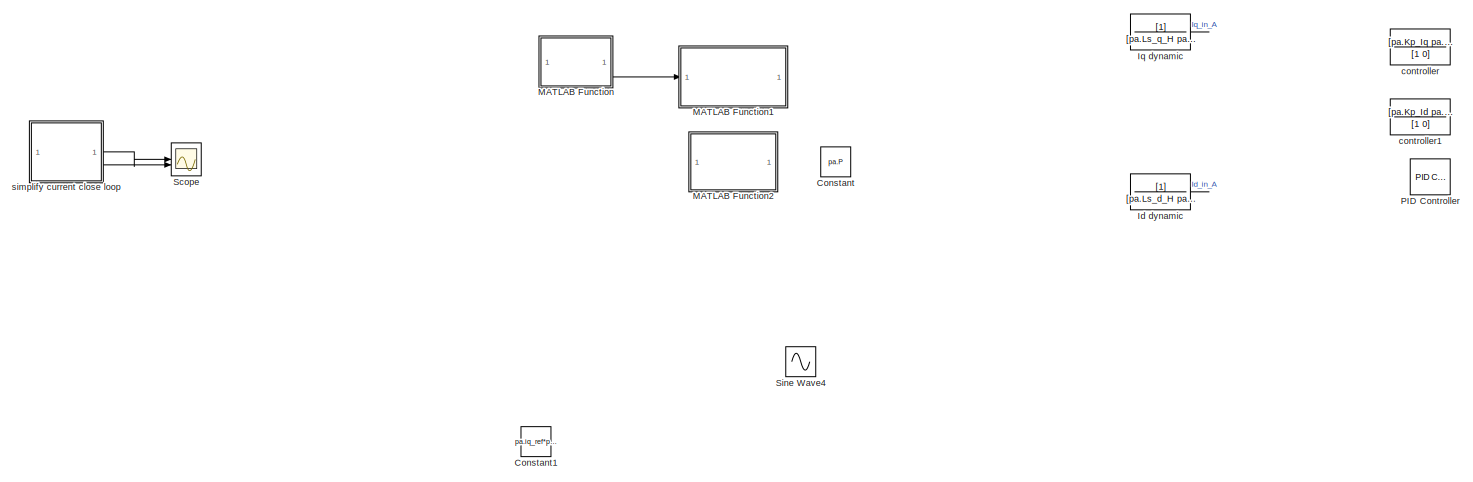
[diagram: root canvas - part 1/9, top right region]
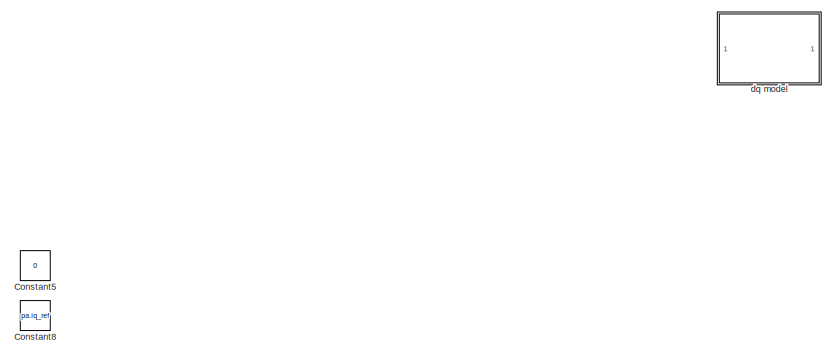
[diagram: root canvas - part 2/9, middle right region]
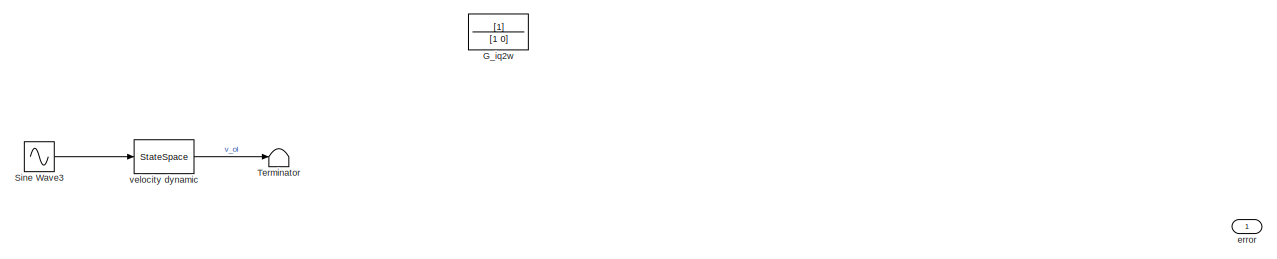
[diagram: root canvas - part 3/9, central region]
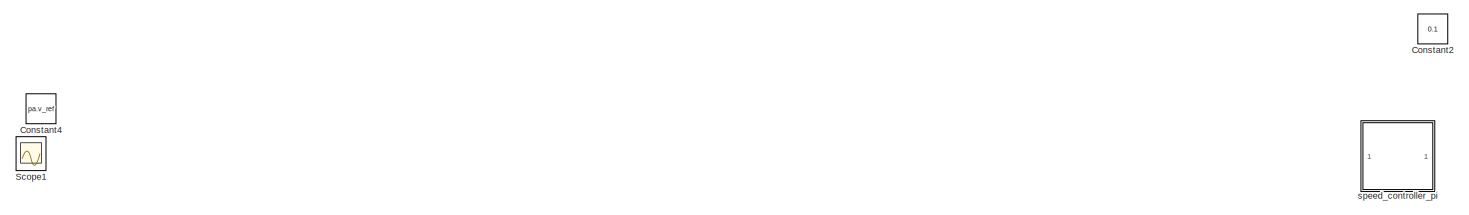
[diagram: root canvas - part 4/9, middle left region]
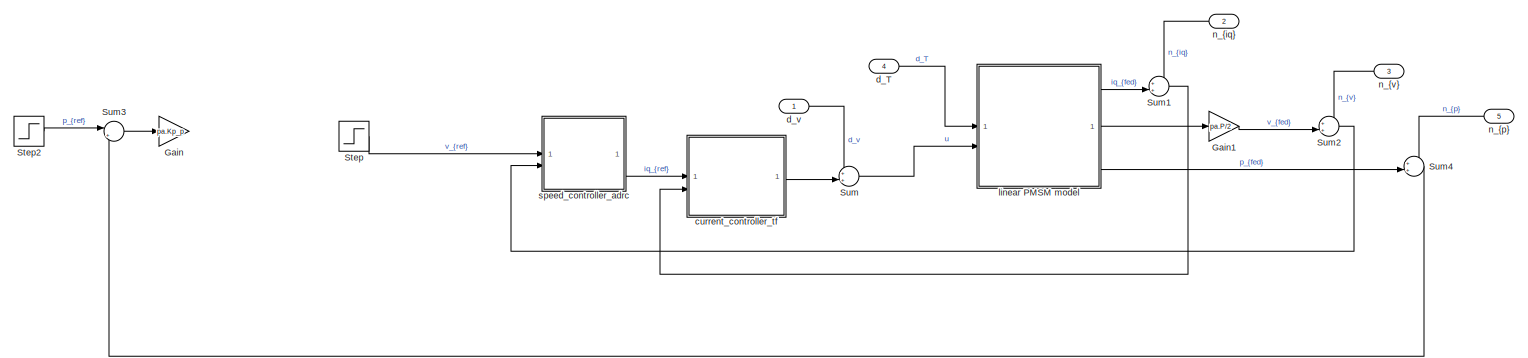
[diagram: root canvas - part 5/9, central region]
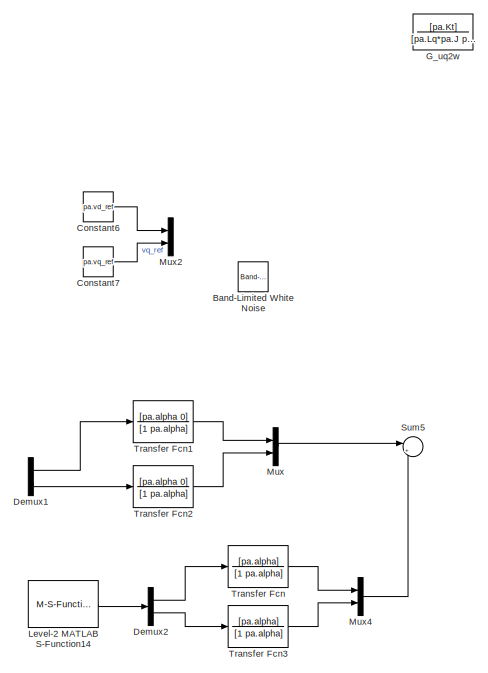
[diagram: root canvas - part 6/9, central region]
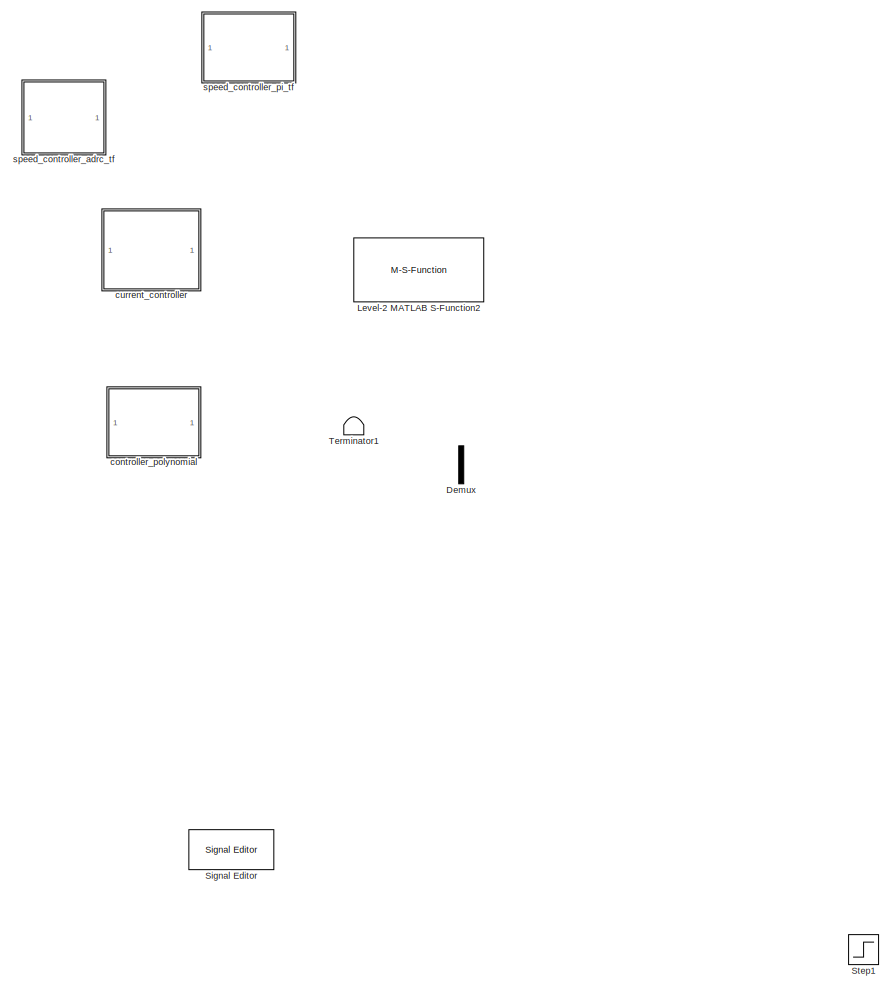
[diagram: root canvas - part 7/9, middle left region]
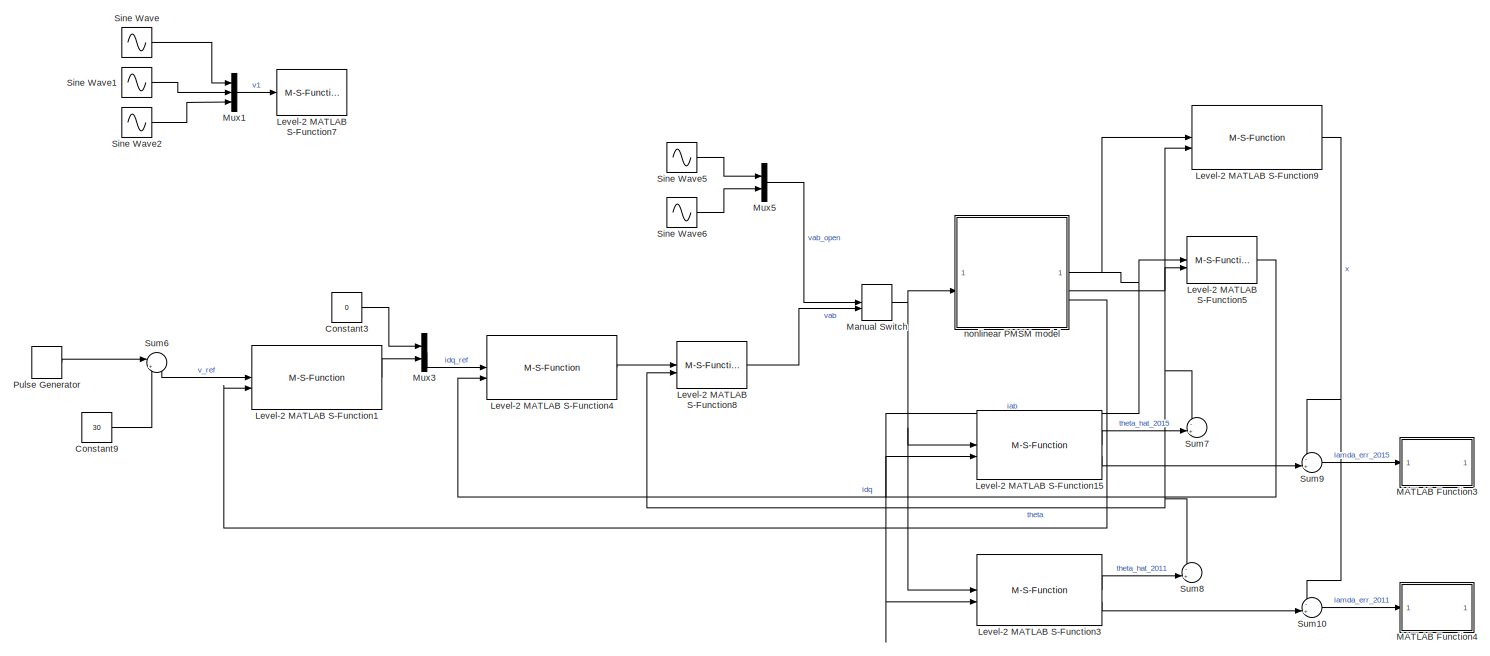
[diagram: root canvas - part 8/9, bottom center region]
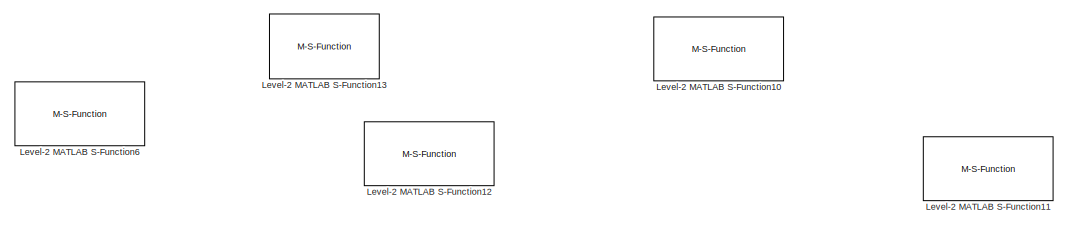
[diagram: root canvas - part 9/9, bottom center region]
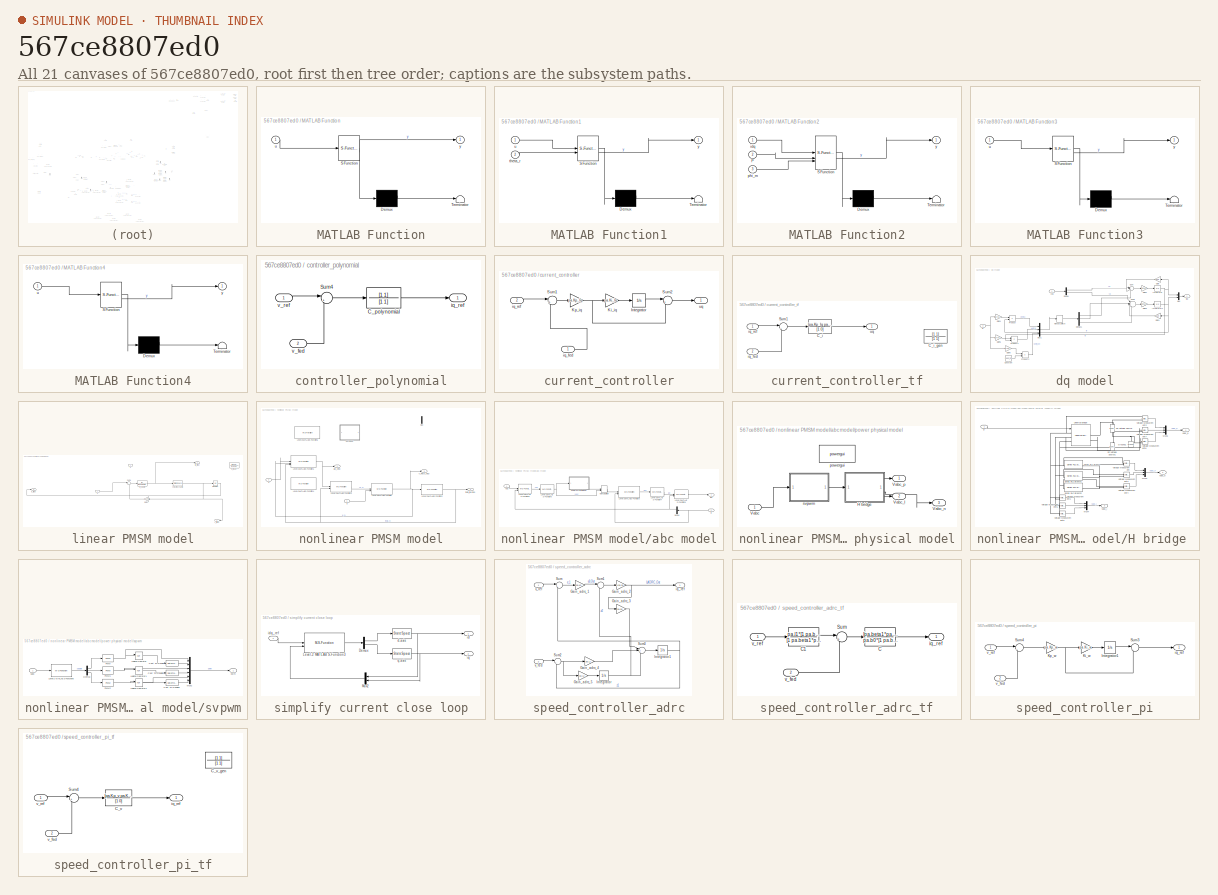
[diagram: thumbnail index - all 21 canvases of the model, root first then tree order]
MODEL slx_567ce8807ed0
KIND model
CONFIG AbsTol = auto
CONFIG EnableMultiTasking = off
CONFIG FixedStep = 0.02
CONFIG InitFcn = init
CONFIG MaxStep = 0.02
CONFIG MinStep = auto
CONFIG RelTol = 1e-3
CONFIG SampleTimeConstraint = Unconstrained
CONFIG SolverName = VariableStepAuto
CONFIG StartTime = 0.0
CONFIG StopTime = 1
BLOCK [Reference] Band-Limited White Noise  REF=simulink/Sources/Band-Limited
White Noise
  Commented = on
  SourceBlock = simulink/Sources/Band-Limited\nWhite Noise
  SourceType = Band-Limited White Noise.
BLOCK [Constant] Constant
  Commented = on
  Value = pa.P
BLOCK [Constant] Constant1
  Commented = on
  Value = pa.iq_ref*pa.R
BLOCK [Constant] Constant2
  Commented = on
  Value = 0.1
BLOCK [Constant] Constant3
  Value = 0
BLOCK [Constant] Constant4
  Commented = on
  Value = pa.v_ref
BLOCK [Constant] Constant5
  Commented = on
  Value = 0
BLOCK [Constant] Constant6
  Value = pa.vd_ref
BLOCK [Constant] Constant7
  Value = pa.vq_ref
BLOCK [Constant] Constant8
  Commented = on
  Value = pa.iq_ref
BLOCK [Constant] Constant9
  Value = 30
BLOCK [Demux] Demux
  Commented = on
  Outputs = 2
BLOCK [Demux] Demux1
  Commented = on
  Outputs = 2
BLOCK [Demux] Demux2
  Commented = on
  Outputs = 2
BLOCK [TransferFcn] G_iq2w
  Commented = on
  Denominator = [1 0]
BLOCK [TransferFcn] G_uq2w
  Commented = on
  Denominator = [pa.Lq*pa.J pa.B*pa.Lq+pa.J*pa.R pa.B*pa.R+pa.Kt*pa.P/2*pa.phi_m]
  Numerator = [pa.Kt]
BLOCK [Gain] Gain
  Commented = on
  Gain = pa.Kp_p
BLOCK [Gain] Gain1
  Commented = on
  Gain = pa.P/2
BLOCK [TransferFcn] Id dynamic
  Commented = on
  Denominator = [pa.Ls_d_H pa.Rs_Ohm]
BLOCK [TransferFcn] Iq dynamic
  Commented = on
  Denominator = [pa.Ls_q_H pa.Rs_Ohm]
BLOCK [M-S-Function] Level-2 MATLAB S-Function1
  FunctionName = speed_controller_pi
  Parameters = pa
BLOCK [M-S-Function] Level-2 MATLAB S-Function10
  Commented = on
  FunctionName = position_reconstruct
  Parameters = pa
BLOCK [M-S-Function] Level-2 MATLAB S-Function11
  Commented = on
  FunctionName = Animation
  Parameters = pa
BLOCK [M-S-Function] Level-2 MATLAB S-Function12
  Commented = on
  FunctionName = flux_dynamic
  Parameters = pa
BLOCK [M-S-Function] Level-2 MATLAB S-Function13
  Commented = on
  FunctionName = nonlinear_observer_Bobtsov2015_ijacsp
  Parameters = pa
BLOCK [M-S-Function] Level-2 MATLAB S-Function14
  Commented = on
  FunctionName = y_temp
  Parameters = pa
BLOCK [M-S-Function] Level-2 MATLAB S-Function15
  FunctionName = nonlinear_observer_Bobtsov2015_auto
  Parameters = pa
BLOCK [M-S-Function] Level-2 MATLAB S-Function2
  Commented = on
  FunctionName = voltage_controller
  Parameters = pa
BLOCK [M-S-Function] Level-2 MATLAB S-Function3
  FunctionName = nonlinear_observer_ortega2011
  Parameters = pa
BLOCK [M-S-Function] Level-2 MATLAB S-Function4
  FunctionName = current_controller
  Parameters = pa
BLOCK [M-S-Function] Level-2 MATLAB S-Function5
  FunctionName = park
  Parameters = pa
BLOCK [M-S-Function] Level-2 MATLAB S-Function6
  Commented = on
  FunctionName = position_reconstruct
  Parameters = pa
BLOCK [M-S-Function] Level-2 MATLAB S-Function7
  FunctionName = clark
  Parameters = pa
BLOCK [M-S-Function] Level-2 MATLAB S-Function8
  FunctionName = park_inv
  Parameters = pa
BLOCK [M-S-Function] Level-2 MATLAB S-Function9
  FunctionName = motor_flux_model
  Parameters = pa
BLOCK [SubSystem] MATLAB Function
  Commented = on
  ErrorFcn = Stateflow.Translate.translate
  PermitHierarchicalResolution = ExplicitOnly
  SFBlockType = MATLAB Function
  TreatAsAtomicUnit = on
BLOCK [Demux] MATLAB Function/ Demux 
  Outputs = 1
BLOCK [S-Function] MATLAB Function/ SFunction 
  EnableBusSupport = on
  FunctionName = sf_sfun
  PortCounts = [1 2]
  SFcnIsStateOwnerBlock = off
  SFunctionDeploymentMode = off
  Tag = Stateflow S-Function 2
BLOCK [Terminator] MATLAB Function/ Terminator 
BLOCK [Inport] MATLAB Function/u
BLOCK [Outport] MATLAB Function/y
BLOCK [SubSystem] MATLAB Function1
  Commented = on
  ErrorFcn = Stateflow.Translate.translate
  PermitHierarchicalResolution = ExplicitOnly
  SFBlockType = MATLAB Function
  TreatAsAtomicUnit = on
BLOCK [Demux] MATLAB Function1/ Demux 
  Outputs = 1
BLOCK [S-Function] MATLAB Function1/ SFunction 
  EnableBusSupport = on
  FunctionName = sf_sfun
  PortCounts = [2 2]
  SFcnIsStateOwnerBlock = off
  SFunctionDeploymentMode = off
  Tag = Stateflow S-Function 1
BLOCK [Terminator] MATLAB Function1/ Terminator 
BLOCK [Inport] MATLAB Function1/theta_r
  Port = 2
BLOCK [Inport] MATLAB Function1/u
BLOCK [Outport] MATLAB Function1/y
BLOCK [SubSystem] MATLAB Function2
  Commented = on
  ErrorFcn = Stateflow.Translate.translate
  PermitHierarchicalResolution = ExplicitOnly
  SFBlockType = MATLAB Function
  TreatAsAtomicUnit = on
BLOCK [Demux] MATLAB Function2/ Demux 
  Outputs = 1
BLOCK [S-Function] MATLAB Function2/ SFunction 
  EnableBusSupport = on
  FunctionName = sf_sfun
  PortCounts = [3 2]
  SFcnIsStateOwnerBlock = off
  SFunctionDeploymentMode = off
  Tag = Stateflow S-Function 3
BLOCK [Terminator] MATLAB Function2/ Terminator 
BLOCK [Inport] MATLAB Function2/P
  Port = 2
BLOCK [Inport] MATLAB Function2/idq
BLOCK [Inport] MATLAB Function2/phi_m
  Port = 3
BLOCK [Outport] MATLAB Function2/y
BLOCK [SubSystem] MATLAB Function3
  ErrorFcn = Stateflow.Translate.translate
  PermitHierarchicalResolution = ExplicitOnly
  SFBlockType = MATLAB Function
  TreatAsAtomicUnit = on
BLOCK [Demux] MATLAB Function3/ Demux 
  Outputs = 1
BLOCK [S-Function] MATLAB Function3/ SFunction 
  EnableBusSupport = on
  FunctionName = sf_sfun
  PortCounts = [1 2]
  SFcnIsStateOwnerBlock = off
  SFunctionDeploymentMode = off
  Tag = Stateflow S-Function 4
BLOCK [Terminator] MATLAB Function3/ Terminator 
BLOCK [Inport] MATLAB Function3/u
BLOCK [Outport] MATLAB Function3/y
BLOCK [SubSystem] MATLAB Function4
  ErrorFcn = Stateflow.Translate.translate
  PermitHierarchicalResolution = ExplicitOnly
  SFBlockType = MATLAB Function
  TreatAsAtomicUnit = on
BLOCK [Demux] MATLAB Function4/ Demux 
  Outputs = 1
BLOCK [S-Function] MATLAB Function4/ SFunction 
  EnableBusSupport = on
  FunctionName = sf_sfun
  PortCounts = [1 2]
  SFcnIsStateOwnerBlock = off
  SFunctionDeploymentMode = off
  Tag = Stateflow S-Function 5
BLOCK [Terminator] MATLAB Function4/ Terminator 
BLOCK [Inport] MATLAB Function4/u
BLOCK [Outport] MATLAB Function4/y
BLOCK [ManualSwitch] Manual Switch
BLOCK [Mux] Mux
  Commented = on
  DisplayOption = bar
  Inputs = 2
BLOCK [Mux] Mux1
  DisplayOption = bar
  Inputs = 3
BLOCK [Mux] Mux2
  DisplayOption = bar
  Inputs = 2
BLOCK [Mux] Mux3
  DisplayOption = bar
  Inputs = 2
BLOCK [Mux] Mux4
  Commented = on
  DisplayOption = bar
  Inputs = 2
BLOCK [Mux] Mux5
  DisplayOption = bar
  Inputs = 2
BLOCK [Reference] PID Controller  REF=slpidlib/PID Controller
  Commented = on
  LibrarySourceBlock = simulink/Continuous/PID Controller
  SourceBlock = slpidlib/PID Controller
  SourceType = PID 1dof
BLOCK [DiscretePulseGenerator] Pulse Generator
  Amplitude = 60
  Period = 0.01
  PulseType = Time based
  PulseWidth = 50
BLOCK [Scope] Scope
  Commented = on
  Floating = off
  NumInputPorts = 2
  ScopeSpecificationString = Simulink.scopes.TimeScopeBlockCfg('CurrentConfiguration', extmgr.ConfigurationSet(extmgr.Configuration('Core','General UI',true),extmgr.Configuration('Core','Source UI',true),extmgr.Configuration('Sources','WiredSimulink',true),extmgr.Configuration('Visuals','Time Domain',true,'SerializedDisplays',{struct('MinYLimReal','-0.125','MaxYLimReal','1.12502','YLabelReal','','MinYLimMag','0.00000','MaxYLi...<+1523ch>
BLOCK [Scope] Scope1
  Commented = on
  Floating = off
  NumInputPorts = 1
  ScopeSpecificationString = Simulink.scopes.TimeScopeBlockCfg('CurrentConfiguration', extmgr.ConfigurationSet(extmgr.Configuration('Core','General UI',true),extmgr.Configuration('Core','Source UI',true),extmgr.Configuration('Sources','WiredSimulink',true,'DataLoggingVariableName','ScopeData1'),extmgr.Configuration('Visuals','Time Domain',true,'SerializedDisplays',{struct('MinYLimReal','-1.00000','MaxYLimReal','1.00000','YLab...<+1438ch>
BLOCK [Reference] Signal Editor  REF=SignalEditorBlockLib/Signal Editor
  Commented = on
  LibrarySourceBlock = simulink/Sources/Signal Editor
  SourceBlock = SignalEditorBlockLib/Signal Editor
  SourceType = SignalEditor
  UserDataPersistent = on
BLOCK [Sin] Sine Wave
  Frequency = 50*2*pi
  SampleTime = 0
BLOCK [Sin] Sine Wave1
  Frequency = 50*2*pi
  Phase = -2*pi/3
  SampleTime = 0
BLOCK [Sin] Sine Wave2
  Frequency = 50*2*pi
  Phase = 2*pi/3
  SampleTime = 0
BLOCK [Sin] Sine Wave3
  Amplitude = 1.0
  Commented = on
  Frequency = 1*2*pi
  SampleTime = 0
BLOCK [Sin] Sine Wave4
  Commented = on
  Frequency = 50*2*pi
  Phase = -pi/2
  SampleTime = 0
BLOCK [Sin] Sine Wave5
  Amplitude = 100
  Frequency = 50
  SampleTime = 0
BLOCK [Sin] Sine Wave6
  Amplitude = 100
  Frequency = 50
  Phase = pi/2
  SampleTime = 0
BLOCK [Step] Step
  After = pa.v_ref
  Commented = on
  SampleTime = 0
BLOCK [Step] Step1
  After = pa.v_ref
  SampleTime = 0
  Time = 0.1
BLOCK [Step] Step2
  After = pa.p_vef
  Commented = on
  SampleTime = 0
BLOCK [Sum] Sum
  Commented = on
  Inputs = ++|
BLOCK [Sum] Sum1
  Commented = on
  Inputs = ++|
BLOCK [Sum] Sum10
  Inputs = -+|
BLOCK [Sum] Sum2
  Commented = on
  Inputs = ++|
BLOCK [Sum] Sum3
  Commented = on
  Inputs = |+-
BLOCK [Sum] Sum4
  Commented = on
  Inputs = ++|
BLOCK [Sum] Sum5
  Commented = on
  Inputs = |+-
BLOCK [Sum] Sum6
  Inputs = |+-
BLOCK [Sum] Sum7
  Inputs = -+|
BLOCK [Sum] Sum8
  Inputs = -+|
BLOCK [Sum] Sum9
  Inputs = -+|
BLOCK [Terminator] Terminator
  Commented = on
BLOCK [Terminator] Terminator1
  Commented = on
BLOCK [TransferFcn] Transfer Fcn
  Commented = on
  Denominator = [1 pa.alpha]
  Numerator = [pa.alpha]
BLOCK [TransferFcn] Transfer Fcn1
  Commented = on
  Denominator = [1 pa.alpha]
  Numerator = [pa.alpha 0]
BLOCK [TransferFcn] Transfer Fcn2
  Commented = on
  Denominator = [1 pa.alpha]
  Numerator = [pa.alpha 0]
BLOCK [TransferFcn] Transfer Fcn3
  Commented = on
  Denominator = [1 pa.alpha]
  Numerator = [pa.alpha]
BLOCK [TransferFcn] controller
  Commented = on
  Denominator = [1 0]
  Numerator = [pa.Kp_Iq pa.Kp_Iq*pa.Ki_Iq]
BLOCK [TransferFcn] controller1
  Commented = on
  Denominator = [1 0]
  Numerator = [pa.Kp_Id pa.Kp_Id*pa.Ki_Id]
BLOCK [SubSystem] controller_polynomial
  Commented = on
BLOCK [TransferFcn] controller_polynomial/C_polynomial
  Denominator = [1 1]
  Numerator = [1 1]
BLOCK [Sum] controller_polynomial/Sum4
  Inputs = |+-
BLOCK [Outport] controller_polynomial/iq_ref
BLOCK [Inport] controller_polynomial/v_fed
  Port = 2
BLOCK [Inport] controller_polynomial/v_ref
BLOCK [SubSystem] current_controller
  Commented = on
BLOCK [Integrator] current_controller/Integrator
BLOCK [Gain] current_controller/Ki_iq
  Gain = pa.Ki_Iq
BLOCK [Gain] current_controller/Kp_iq
  Gain = pa.Kp_Iq
BLOCK [Sum] current_controller/Sum1
  Inputs = |+-
BLOCK [Sum] current_controller/Sum2
  Inputs = |++
BLOCK [Inport] current_controller/iq_fed
BLOCK [Inport] current_controller/iq_ref
  Port = 2
BLOCK [Outport] current_controller/uq
BLOCK [SubSystem] current_controller_tf
  Commented = on
BLOCK [TransferFcn] current_controller_tf/C_i
  Denominator = [1 0]
  Numerator = [pa.Kp_Iq pa.Kp_Iq*pa.Ki_Iq]
BLOCK [TransferFcn] current_controller_tf/C_i_gen
  Denominator = [1 1]
  Numerator = [1 1]
BLOCK [Sum] current_controller_tf/Sum1
  Inputs = |+-
BLOCK [Inport] current_controller_tf/iq_fed
  Port = 2
BLOCK [Inport] current_controller_tf/iq_ref
BLOCK [Outport] current_controller_tf/uq
BLOCK [Inport] d_T
  Port = 4
BLOCK [Inport] d_v
  NameLocation = left
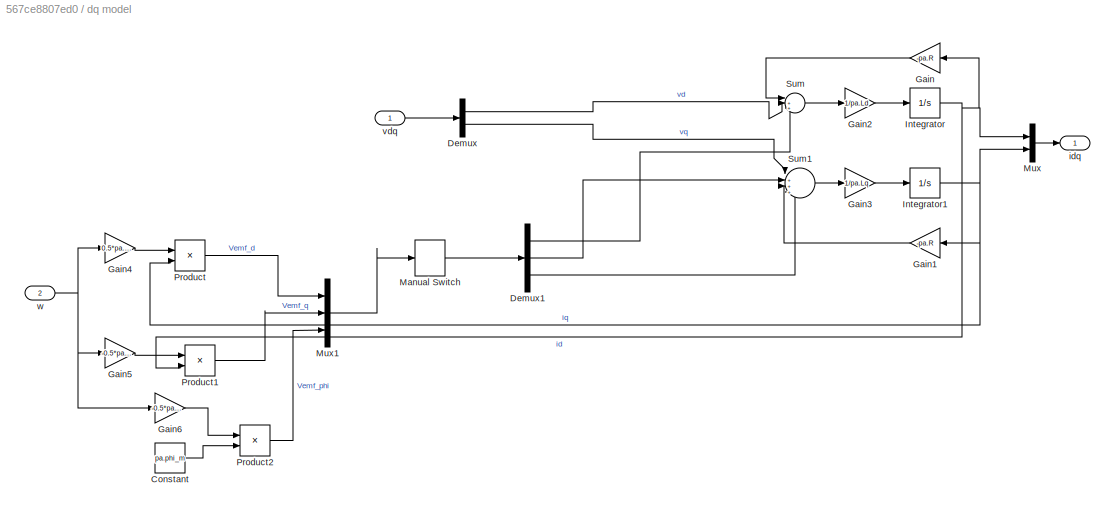
BLOCK [SubSystem] dq model
  Commented = on
BLOCK [Constant] dq model/Constant
  Value = pa.phi_m
BLOCK [Demux] dq model/Demux
  Outputs = 2
BLOCK [Demux] dq model/Demux1
  Outputs = 3
BLOCK [Gain] dq model/Gain
  Gain = -pa.R
BLOCK [Gain] dq model/Gain1
  Gain = -pa.R
BLOCK [Gain] dq model/Gain2
  Gain = 1/pa.Ld
BLOCK [Gain] dq model/Gain3
  Gain = 1/pa.Lq
BLOCK [Gain] dq model/Gain4
  Gain = 0.5*pa.P*pa.Lq
BLOCK [Gain] dq model/Gain5
  Gain = -0.5*pa.P*pa.Ld
BLOCK [Gain] dq model/Gain6
  Gain = -0.5*pa.P
BLOCK [Integrator] dq model/Integrator
BLOCK [Integrator] dq model/Integrator1
BLOCK [ManualSwitch] dq model/Manual Switch
BLOCK [Mux] dq model/Mux
  DisplayOption = bar
  Inputs = 2
BLOCK [Mux] dq model/Mux1
  DisplayOption = bar
  Inputs = 3
BLOCK [Product] dq model/Product
BLOCK [Product] dq model/Product1
BLOCK [Product] dq model/Product2
BLOCK [Sum] dq model/Sum
  Inputs = |+++
BLOCK [Sum] dq model/Sum1
  Inputs = |++++
BLOCK [Outport] dq model/idq
BLOCK [Inport] dq model/vdq
BLOCK [Inport] dq model/w
  Port = 2
BLOCK [Outport] error
BLOCK [SubSystem] linear PMSM model
  Commented = on
BLOCK [TransferFcn] linear PMSM model/G_iq2w
  Denominator = [1 192.9]
  Numerator = [3643]
BLOCK [TransferFcn] linear PMSM model/G_uw2iq
  Denominator = [pa.Lq pa.R]
BLOCK [Gain] linear PMSM model/Gain1
  Gain = pa.Km
BLOCK [Integrator] linear PMSM model/Integrator
BLOCK [Sum] linear PMSM model/Sum4
  Inputs = |+-
BLOCK [Inport] linear PMSM model/d
BLOCK [Outport] linear PMSM model/iq_{fed}
BLOCK [Outport] linear PMSM model/p_{fed}
  Port = 3
BLOCK [Inport] linear PMSM model/u
  Port = 2
BLOCK [Outport] linear PMSM model/v_{fed}
  Port = 2
BLOCK [StateSpace] linear PMSM model/velocity dynamic
  A = -0.5
  B = 1058
  D = 0
  InitialCondition = 0
BLOCK [Inport] n_{iq}
  Port = 2
BLOCK [Inport] n_{p}
  Port = 5
BLOCK [Inport] n_{v}
  Port = 3
BLOCK [SubSystem] nonlinear PMSM model
BLOCK [Outport] nonlinear PMSM model/Iab_{fed}
BLOCK [M-S-Function] nonlinear PMSM model/Level-2 MATLAB S-Function
  FunctionName = velocity_dynamic
  Parameters = pa
BLOCK [M-S-Function] nonlinear PMSM model/Level-2 MATLAB S-Function1
  FunctionName = voltage_dynamic_ab
  Parameters = pa
BLOCK [M-S-Function] nonlinear PMSM model/Level-2 MATLAB S-Function2
  FunctionName = position_dynamic
  Parameters = pa
BLOCK [M-S-Function] nonlinear PMSM model/Level-2 MATLAB S-Function3
  FunctionName = torque_equation
  Parameters = pa
BLOCK [M-S-Function] nonlinear PMSM model/Level-2 MATLAB S-Function4
  FunctionName = voltage_dynamic_ab_rp
  Parameters = pa
BLOCK [M-S-Function] nonlinear PMSM model/Level-2 MATLAB S-Function5
  FunctionName = voltage_dynamic_dq
  Parameters = pa
BLOCK [Mux] nonlinear PMSM model/Mux
  DisplayOption = bar
  Inputs = 2
BLOCK [SubSystem] nonlinear PMSM model/abc model
BLOCK [Demux] nonlinear PMSM model/abc model/Demux
  Outputs = 2
BLOCK [Outport] nonlinear PMSM model/abc model/Idq
BLOCK [M-S-Function] nonlinear PMSM model/abc model/Level-2 MATLAB S-Function3
  FunctionName = voltage_dynamic_abc
  Parameters = pa
BLOCK [M-S-Function] nonlinear PMSM model/abc model/Level-2 MATLAB S-Function4
  FunctionName = clark
  Parameters = pa
BLOCK [M-S-Function] nonlinear PMSM model/abc model/Level-2 MATLAB S-Function5
  FunctionName = park
  Parameters = pa
BLOCK [M-S-Function] nonlinear PMSM model/abc model/Level-2 MATLAB S-Function6
  FunctionName = clark_inv
  Parameters = pa
BLOCK [M-S-Function] nonlinear PMSM model/abc model/Level-2 MATLAB S-Function8
  FunctionName = park_inv
  Parameters = pa
BLOCK [ManualSwitch] nonlinear PMSM model/abc model/Manual Switch
  CurrentSetting = 0
BLOCK [Inport] nonlinear PMSM model/abc model/Vdq
BLOCK [Inport] nonlinear PMSM model/abc model/in
  Port = 2
BLOCK [SubSystem] nonlinear PMSM model/abc model/power physical model
  Commented = on
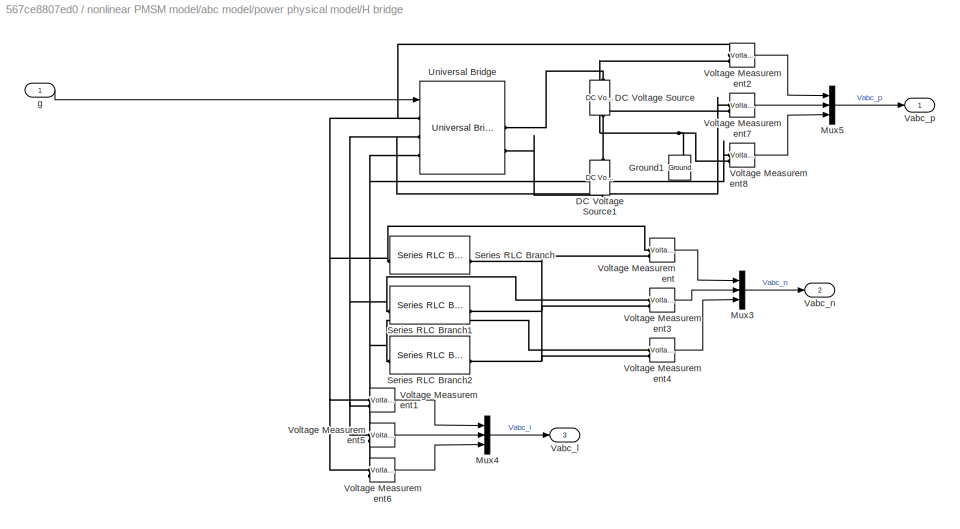
BLOCK [SubSystem] nonlinear PMSM model/abc model/power physical model/H bridge 
BLOCK [Reference] nonlinear PMSM model/abc model/power physical model/H bridge /DC Voltage Source  REF=spsDCVoltageSourceLib/DC Voltage Source
  LibrarySourceBlock = sps_lib/Sources/DC Voltage Source
  SourceBlock = spsDCVoltageSourceLib/DC Voltage Source
  SourceType = DC Voltage Source
BLOCK [Reference] nonlinear PMSM model/abc model/power physical model/H bridge /DC Voltage Source1  REF=spsDCVoltageSourceLib/DC Voltage Source
  LibrarySourceBlock = sps_lib/Sources/DC Voltage Source
  SourceBlock = spsDCVoltageSourceLib/DC Voltage Source
  SourceType = DC Voltage Source
BLOCK [Reference] nonlinear PMSM model/abc model/power physical model/H bridge /Ground1  REF=spsGroundLib/Ground
  LibrarySourceBlock = sps_lib/Utilities/Ground
  NameLocation = right
  SourceBlock = spsGroundLib/Ground
  SourceType = Ground
BLOCK [Mux] nonlinear PMSM model/abc model/power physical model/H bridge /Mux3
  DisplayOption = bar
  Inputs = 3
BLOCK [Mux] nonlinear PMSM model/abc model/power physical model/H bridge /Mux4
  DisplayOption = bar
  Inputs = 3
BLOCK [Mux] nonlinear PMSM model/abc model/power physical model/H bridge /Mux5
  DisplayOption = bar
  Inputs = 3
BLOCK [Reference] nonlinear PMSM model/abc model/power physical model/H bridge /Series RLC Branch  REF=spsSeriesRLCBranchLib/Series RLC Branch
  LibrarySourceBlock = sps_lib/Passives/Series RLC Branch
  SourceBlock = spsSeriesRLCBranchLib/Series RLC Branch
  SourceType = Series RLC Branch
BLOCK [Reference] nonlinear PMSM model/abc model/power physical model/H bridge /Series RLC Branch1  REF=spsSeriesRLCBranchLib/Series RLC Branch
  LibrarySourceBlock = sps_lib/Passives/Series RLC Branch
  SourceBlock = spsSeriesRLCBranchLib/Series RLC Branch
  SourceType = Series RLC Branch
BLOCK [Reference] nonlinear PMSM model/abc model/power physical model/H bridge /Series RLC Branch2  REF=spsSeriesRLCBranchLib/Series RLC Branch
  LibrarySourceBlock = sps_lib/Passives/Series RLC Branch
  SourceBlock = spsSeriesRLCBranchLib/Series RLC Branch
  SourceType = Series RLC Branch
BLOCK [Reference] nonlinear PMSM model/abc model/power physical model/H bridge /Universal Bridge  REF=spsUniversalBridgeLib/Universal Bridge
  LibrarySourceBlock = sps_lib/Power Electronics/Universal Bridge
  SourceBlock = spsUniversalBridgeLib/Universal Bridge
  SourceType = Universal Bridge
BLOCK [Outport] nonlinear PMSM model/abc model/power physical model/H bridge /Vabc_l
  Port = 3
BLOCK [Outport] nonlinear PMSM model/abc model/power physical model/H bridge /Vabc_n
  Port = 2
BLOCK [Outport] nonlinear PMSM model/abc model/power physical model/H bridge /Vabc_p
BLOCK [Reference] nonlinear PMSM model/abc model/power physical model/H bridge /Voltage Measurement  REF=spsVoltageMeasurementLib/Voltage Measurement
  LibrarySourceBlock = sps_lib/Sensors and Measurements/Voltage Measurement
  SourceBlock = spsVoltageMeasurementLib/Voltage Measurement
  SourceType = Voltage Measurement
  UserDataPersistent = on
BLOCK [Reference] nonlinear PMSM model/abc model/power physical model/H bridge /Voltage Measurement1  REF=spsVoltageMeasurementLib/Voltage Measurement
  LibrarySourceBlock = sps_lib/Sensors and Measurements/Voltage Measurement
  SourceBlock = spsVoltageMeasurementLib/Voltage Measurement
  SourceType = Voltage Measurement
  UserDataPersistent = on
BLOCK [Reference] nonlinear PMSM model/abc model/power physical model/H bridge /Voltage Measurement2  REF=spsVoltageMeasurementLib/Voltage Measurement
  LibrarySourceBlock = sps_lib/Sensors and Measurements/Voltage Measurement
  SourceBlock = spsVoltageMeasurementLib/Voltage Measurement
  SourceType = Voltage Measurement
  UserDataPersistent = on
BLOCK [Reference] nonlinear PMSM model/abc model/power physical model/H bridge /Voltage Measurement3  REF=spsVoltageMeasurementLib/Voltage Measurement
  LibrarySourceBlock = sps_lib/Sensors and Measurements/Voltage Measurement
  SourceBlock = spsVoltageMeasurementLib/Voltage Measurement
  SourceType = Voltage Measurement
  UserDataPersistent = on
BLOCK [Reference] nonlinear PMSM model/abc model/power physical model/H bridge /Voltage Measurement4  REF=spsVoltageMeasurementLib/Voltage Measurement
  LibrarySourceBlock = sps_lib/Sensors and Measurements/Voltage Measurement
  SourceBlock = spsVoltageMeasurementLib/Voltage Measurement
  SourceType = Voltage Measurement
  UserDataPersistent = on
BLOCK [Reference] nonlinear PMSM model/abc model/power physical model/H bridge /Voltage Measurement5  REF=spsVoltageMeasurementLib/Voltage Measurement
  LibrarySourceBlock = sps_lib/Sensors and Measurements/Voltage Measurement
  SourceBlock = spsVoltageMeasurementLib/Voltage Measurement
  SourceType = Voltage Measurement
  UserDataPersistent = on
BLOCK [Reference] nonlinear PMSM model/abc model/power physical model/H bridge /Voltage Measurement6  REF=spsVoltageMeasurementLib/Voltage Measurement
  LibrarySourceBlock = sps_lib/Sensors and Measurements/Voltage Measurement
  SourceBlock = spsVoltageMeasurementLib/Voltage Measurement
  SourceType = Voltage Measurement
  UserDataPersistent = on
BLOCK [Reference] nonlinear PMSM model/abc model/power physical model/H bridge /Voltage Measurement7  REF=spsVoltageMeasurementLib/Voltage Measurement
  LibrarySourceBlock = sps_lib/Sensors and Measurements/Voltage Measurement
  SourceBlock = spsVoltageMeasurementLib/Voltage Measurement
  SourceType = Voltage Measurement
  UserDataPersistent = on
BLOCK [Reference] nonlinear PMSM model/abc model/power physical model/H bridge /Voltage Measurement8  REF=spsVoltageMeasurementLib/Voltage Measurement
  LibrarySourceBlock = sps_lib/Sensors and Measurements/Voltage Measurement
  SourceBlock = spsVoltageMeasurementLib/Voltage Measurement
  SourceType = Voltage Measurement
  UserDataPersistent = on
BLOCK [Inport] nonlinear PMSM model/abc model/power physical model/H bridge /g
BLOCK [Inport] nonlinear PMSM model/abc model/power physical model/Vabc
BLOCK [Outport] nonlinear PMSM model/abc model/power physical model/Vabc_l
  Port = 2
BLOCK [Outport] nonlinear PMSM model/abc model/power physical model/Vabc_n
  Port = 3
BLOCK [Outport] nonlinear PMSM model/abc model/power physical model/Vabc_p
BLOCK [Reference] nonlinear PMSM model/abc model/power physical model/powergui  REF=spspowerguiLib/powergui
  LibrarySourceBlock = sps_lib/powergui
  Priority = 1
  SourceBlock = spspowerguiLib/powergui
  SourceType = PSB option menu block
BLOCK [SubSystem] nonlinear PMSM model/abc model/power physical model/svpwm
BLOCK [DataTypeConversion] nonlinear PMSM model/abc model/power physical model/svpwm/Cast To Double
  OutDataTypeStr = double
  RndMeth = Floor
  SaturateOnIntegerOverflow = off
BLOCK [DataTypeConversion] nonlinear PMSM model/abc model/power physical model/svpwm/Cast To Double1
  OutDataTypeStr = double
  RndMeth = Floor
  SaturateOnIntegerOverflow = off
BLOCK [DataTypeConversion] nonlinear PMSM model/abc model/power physical model/svpwm/Cast To Double2
  OutDataTypeStr = double
  RndMeth = Floor
  SaturateOnIntegerOverflow = off
BLOCK [Demux] nonlinear PMSM model/abc model/power physical model/svpwm/Demux
  Outputs = 3
BLOCK [M-S-Function] nonlinear PMSM model/abc model/power physical model/svpwm/Level-2 MATLAB S-Function6
  FunctionName = Saddle_Wave
  Parameters = pa
BLOCK [Logic] nonlinear PMSM model/abc model/power physical model/svpwm/Logical Operator
  AllPortsSameDT = off
  Operator = NOT
  OutDataTypeStr = boolean
BLOCK [Logic] nonlinear PMSM model/abc model/power physical model/svpwm/Logical Operator1
  AllPortsSameDT = off
  Operator = NOT
  OutDataTypeStr = boolean
BLOCK [Logic] nonlinear PMSM model/abc model/power physical model/svpwm/Logical Operator2
  AllPortsSameDT = off
  Operator = NOT
  OutDataTypeStr = boolean
BLOCK [Mux] nonlinear PMSM model/abc model/power physical model/svpwm/Mux2
  DisplayOption = bar
  Inputs = 6
BLOCK [Reference] nonlinear PMSM model/abc model/power physical model/svpwm/PWM  REF=simulink/Discontinuities/PWM
  DisableCoverage = on
  SourceBlock = simulink/Discontinuities/PWM
  SourceType = PWM
BLOCK [Reference] nonlinear PMSM model/abc model/power physical model/svpwm/PWM1  REF=simulink/Discontinuities/PWM
  DisableCoverage = on
  SourceBlock = simulink/Discontinuities/PWM
  SourceType = PWM
BLOCK [Reference] nonlinear PMSM model/abc model/power physical model/svpwm/PWM2  REF=simulink/Discontinuities/PWM
  DisableCoverage = on
  SourceBlock = simulink/Discontinuities/PWM
  SourceType = PWM
BLOCK [Inport] nonlinear PMSM model/abc model/power physical model/svpwm/Vabc
BLOCK [Outport] nonlinear PMSM model/abc model/power physical model/svpwm/pwm
BLOCK [Inport] nonlinear PMSM model/d
BLOCK [Outport] nonlinear PMSM model/theta_flux{fed}
  Port = 2
BLOCK [Inport] nonlinear PMSM model/u
  Port = 2
BLOCK [Outport] nonlinear PMSM model/v_mech_{fed}
  Port = 3
BLOCK [SubSystem] simplify current close loop
  Commented = on
BLOCK [Demux] simplify current close loop/Demux
  Outputs = 2
BLOCK [M-S-Function] simplify current close loop/Level-2 MATLAB S-Function3
  FunctionName = current_controller
  Parameters = pa
BLOCK [Mux] simplify current close loop/Mux2
  DisplayOption = bar
  Inputs = 2
BLOCK [StateSpace] simplify current close loop/d-axis
  A = -pa.R/pa.Ld
  B = 1/pa.Ld
  D = 0
  InitialCondition = 0
BLOCK [Outport] simplify current close loop/id
BLOCK [Inport] simplify current close loop/idq_ref
BLOCK [Outport] simplify current close loop/iq
  Port = 2
BLOCK [StateSpace] simplify current close loop/q-axis
  A = -pa.R/pa.Lq
  B = 1/pa.Lq
  D = 0
  InitialCondition = 0
BLOCK [SubSystem] speed_controller_adrc
  Commented = on
BLOCK [Gain] speed_controller_adrc/Gain_adrc_1
  Gain = pa.kp
BLOCK [Gain] speed_controller_adrc/Gain_adrc_2
  Gain = 1/pa.b0
BLOCK [Gain] speed_controller_adrc/Gain_adrc_3
  Gain = pa.b0
BLOCK [Gain] speed_controller_adrc/Gain_adrc_4
  Gain = pa.L1
BLOCK [Gain] speed_controller_adrc/Gain_adrc_5
  Gain = pa.L2
BLOCK [Integrator] speed_controller_adrc/Integrator
BLOCK [Integrator] speed_controller_adrc/Integrator1
BLOCK [Sum] speed_controller_adrc/Sum
  Inputs = |+-
BLOCK [Sum] speed_controller_adrc/Sum1
  Inputs = |+-
BLOCK [Sum] speed_controller_adrc/Sum2
  Inputs = |+-
BLOCK [Sum] speed_controller_adrc/Sum3
  Inputs = |+++
BLOCK [Outport] speed_controller_adrc/iq_ref
BLOCK [Inport] speed_controller_adrc/v_fed
  Port = 2
BLOCK [Inport] speed_controller_adrc/v_ref
BLOCK [SubSystem] speed_controller_adrc_tf
  Commented = on
BLOCK [TransferFcn] speed_controller_adrc_tf/C
  Denominator = pa.b0*[1 pa.beta1+pa.l1 0]
  Numerator = [pa.beta1*pa.l1+pa.beta2 pa.beta2*pa.l1]
BLOCK [TransferFcn] speed_controller_adrc_tf/C1
  Denominator = [1 pa.beta1*pa.l1+pa.beta2 pa.beta2*pa.l1]
  Numerator = pa.l1*[1 pa.beta1 pa.beta2]
BLOCK [Sum] speed_controller_adrc_tf/Sum
  Inputs = |+-
BLOCK [Outport] speed_controller_adrc_tf/iq_ref
BLOCK [Inport] speed_controller_adrc_tf/v_fed
  Port = 2
BLOCK [Inport] speed_controller_adrc_tf/v_ref
BLOCK [SubSystem] speed_controller_pi
  Commented = on
BLOCK [Integrator] speed_controller_pi/Integrator1
BLOCK [Gain] speed_controller_pi/Ki_w
  Gain = pa.Ki_w
BLOCK [Gain] speed_controller_pi/Kp_w
  Gain = pa.Kp_w
BLOCK [Sum] speed_controller_pi/Sum3
  Inputs = |++
BLOCK [Sum] speed_controller_pi/Sum4
  Inputs = |+-
BLOCK [Outport] speed_controller_pi/iq_ref
BLOCK [Inport] speed_controller_pi/v_fed
  Port = 2
BLOCK [Inport] speed_controller_pi/v_ref
BLOCK [SubSystem] speed_controller_pi_tf
  Commented = on
BLOCK [TransferFcn] speed_controller_pi_tf/C_v
  Denominator = [1 0]
  Numerator = [pa.Kp_v pa.Kp_v*pa.Ki_v]
BLOCK [TransferFcn] speed_controller_pi_tf/C_v_gen
  Denominator = [1 1]
  Numerator = [1 1]
BLOCK [Sum] speed_controller_pi_tf/Sum4
  Inputs = |+-
BLOCK [Outport] speed_controller_pi_tf/iq_ref
BLOCK [Inport] speed_controller_pi_tf/v_fed
  Port = 2
BLOCK [Inport] speed_controller_pi_tf/v_ref
BLOCK [StateSpace] velocity dynamic
  A = -0.5
  B = 1058
  Commented = on
  D = 0
  InitialCondition = 0
LINE Constant3:1 -> Mux3:1
LINE Constant6:1 -> Mux2:1
LINE Constant7:1 -> Mux2:2
LINE Constant9:1 -> Sum6:2
LINE Demux1:1 -> Transfer Fcn1:1
LINE Demux1:2 -> Transfer Fcn2:1
LINE Demux2:1 -> Transfer Fcn:1
LINE Demux2:2 -> Transfer Fcn3:1
LINE Gain1:1 -> Sum2:2
LINE Level-2 MATLAB S-Function14:1 -> Demux2:1
LINE Level-2 MATLAB S-Function15:1 -> Sum7:2
LINE Level-2 MATLAB S-Function15:2 -> Sum9:2
LINE Level-2 MATLAB S-Function1:1 -> Mux3:2
LINE Level-2 MATLAB S-Function3:1 -> Sum8:2
LINE Level-2 MATLAB S-Function3:2 -> Sum10:2
LINE Level-2 MATLAB S-Function4:1 -> Level-2 MATLAB S-Function8:1
LINE Level-2 MATLAB S-Function5:1 -> Level-2 MATLAB S-Function4:2
LINE Level-2 MATLAB S-Function8:1 -> Manual Switch:2
NET Level-2 MATLAB S-Function9:1 -> Sum10:1, Sum9:1
LINE MATLAB Function:1 -> MATLAB Function1:1
NET Manual Switch:1 -> Level-2 MATLAB S-Function15:1, Level-2 MATLAB S-Function3:1, nonlinear PMSM model:2
LINE Mux1:1 -> Level-2 MATLAB S-Function7:1
LINE Mux3:1 -> Level-2 MATLAB S-Function4:1
LINE Mux4:1 -> Sum5:2
LINE Mux5:1 -> Manual Switch:1
LINE Mux:1 -> Sum5:1
LINE Pulse Generator:1 -> Sum6:1
LINE Sine Wave1:1 -> Mux1:2
LINE Sine Wave2:1 -> Mux1:3
LINE Sine Wave3:1 -> velocity dynamic:1
LINE Sine Wave5:1 -> Mux5:1
LINE Sine Wave6:1 -> Mux5:2
LINE Sine Wave:1 -> Mux1:1
LINE Step2:1 -> Sum3:1
LINE Step:1 -> speed_controller_adrc:1
LINE Sum10:1 -> MATLAB Function4:1
LINE Sum1:1 -> current_controller_tf:2
LINE Sum2:1 -> speed_controller_adrc:2
LINE Sum3:1 -> Gain:1
LINE Sum4:1 -> Sum3:2
LINE Sum6:1 -> Level-2 MATLAB S-Function1:1
LINE Sum9:1 -> MATLAB Function3:1
LINE Sum:1 -> linear PMSM model:2
LINE Transfer Fcn1:1 -> Mux:1
LINE Transfer Fcn2:1 -> Mux:2
LINE Transfer Fcn3:1 -> Mux4:2
LINE Transfer Fcn:1 -> Mux4:1
LINE controller_polynomial/C_polynomial:1 -> controller_polynomial/iq_ref:1
LINE controller_polynomial/Sum4:1 -> controller_polynomial/C_polynomial:1
LINE controller_polynomial/v_fed:1 -> controller_polynomial/Sum4:2
LINE controller_polynomial/v_ref:1 -> controller_polynomial/Sum4:1
LINE current_controller/Integrator:1 -> current_controller/Sum2:1
LINE current_controller/Ki_iq:1 -> current_controller/Integrator:1
NET current_controller/Kp_iq:1 -> current_controller/Ki_iq:1, current_controller/Sum2:2
LINE current_controller/Sum1:1 -> current_controller/Kp_iq:1
LINE current_controller/Sum2:1 -> current_controller/uq:1
LINE current_controller/iq_fed:1 -> current_controller/Sum1:2
LINE current_controller/iq_ref:1 -> current_controller/Sum1:1
LINE current_controller_tf/C_i:1 -> current_controller_tf/uq:1
LINE current_controller_tf/Sum1:1 -> current_controller_tf/C_i:1
LINE current_controller_tf/iq_fed:1 -> current_controller_tf/Sum1:2
LINE current_controller_tf/iq_ref:1 -> current_controller_tf/Sum1:1
LINE current_controller_tf:1 -> Sum:2
LINE d_T:1 -> linear PMSM model:1
LINE d_v:1 -> Sum:1
LINE dq model/Constant:1 -> dq model/Product2:2
LINE dq model/Demux1:1 -> dq model/Sum:3
LINE dq model/Demux1:2 -> dq model/Sum1:2
LINE dq model/Demux1:3 -> dq model/Sum1:4
LINE dq model/Demux:1 -> dq model/Sum:2
LINE dq model/Demux:2 -> dq model/Sum1:1
LINE dq model/Gain1:1 -> dq model/Sum1:3
LINE dq model/Gain2:1 -> dq model/Integrator:1
LINE dq model/Gain3:1 -> dq model/Integrator1:1
LINE dq model/Gain4:1 -> dq model/Product:1
LINE dq model/Gain5:1 -> dq model/Product1:1
LINE dq model/Gain6:1 -> dq model/Product2:1
LINE dq model/Gain:1 -> dq model/Sum:1
NET dq model/Integrator1:1 -> dq model/Gain1:1, dq model/Mux:2, dq model/Product:2
NET dq model/Integrator:1 -> dq model/Gain:1, dq model/Mux:1, dq model/Product1:2
LINE dq model/Manual Switch:1 -> dq model/Demux1:1
LINE dq model/Mux1:1 -> dq model/Manual Switch:1
LINE dq model/Mux:1 -> dq model/idq:1
LINE dq model/Product1:1 -> dq model/Mux1:2
LINE dq model/Product2:1 -> dq model/Mux1:3
LINE dq model/Product:1 -> dq model/Mux1:1
LINE dq model/Sum1:1 -> dq model/Gain3:1
LINE dq model/Sum:1 -> dq model/Gain2:1
LINE dq model/vdq:1 -> dq model/Demux:1
NET dq model/w:1 -> dq model/Gain4:1, dq model/Gain5:1, dq model/Gain6:1
NET linear PMSM model/G_uw2iq:1 -> linear PMSM model/iq_{fed}:1, linear PMSM model/velocity dynamic:1
LINE linear PMSM model/Gain1:1 -> linear PMSM model/Sum4:2
LINE linear PMSM model/Integrator:1 -> linear PMSM model/p_{fed}:1
LINE linear PMSM model/Sum4:1 -> linear PMSM model/G_uw2iq:1
LINE linear PMSM model/u:1 -> linear PMSM model/Sum4:1
NET linear PMSM model/velocity dynamic:1 -> linear PMSM model/Gain1:1, linear PMSM model/Integrator:1, linear PMSM model/v_{fed}:1
LINE linear PMSM model:1 -> Sum1:2
LINE linear PMSM model:2 -> Gain1:1
LINE linear PMSM model:3 -> Sum4:2
LINE n_{iq}:1 -> Sum1:1
LINE n_{p}:1 -> Sum4:1
LINE n_{v}:1 -> Sum2:1
NET nonlinear PMSM model/Level-2 MATLAB S-Function1:1 -> nonlinear PMSM model/Iab_{fed}:1, nonlinear PMSM model/Level-2 MATLAB S-Function3:1
NET nonlinear PMSM model/Level-2 MATLAB S-Function2:1 -> nonlinear PMSM model/Level-2 MATLAB S-Function1:3, nonlinear PMSM model/Level-2 MATLAB S-Function3:2, nonlinear PMSM model/theta_flux{fed}:1
LINE nonlinear PMSM model/Level-2 MATLAB S-Function3:1 -> nonlinear PMSM model/Level-2 MATLAB S-Function:1
NET nonlinear PMSM model/Level-2 MATLAB S-Function:1 -> nonlinear PMSM model/Level-2 MATLAB S-Function1:2, nonlinear PMSM model/Level-2 MATLAB S-Function2:1, nonlinear PMSM model/v_mech_{fed}:1
NET nonlinear PMSM model/abc model/Demux:1 -> nonlinear PMSM model/abc model/Level-2 MATLAB S-Function5:2, nonlinear PMSM model/abc model/Level-2 MATLAB S-Function8:2
LINE nonlinear PMSM model/abc model/Level-2 MATLAB S-Function3:1 -> nonlinear PMSM model/abc model/Level-2 MATLAB S-Function4:1
LINE nonlinear PMSM model/abc model/Level-2 MATLAB S-Function4:1 -> nonlinear PMSM model/abc model/Level-2 MATLAB S-Function5:1
LINE nonlinear PMSM model/abc model/Level-2 MATLAB S-Function5:1 -> nonlinear PMSM model/abc model/Idq:1
NET nonlinear PMSM model/abc model/Level-2 MATLAB S-Function6:1 -> nonlinear PMSM model/abc model/Manual Switch:2, nonlinear PMSM model/abc model/power physical model:1
LINE nonlinear PMSM model/abc model/Level-2 MATLAB S-Function8:1 -> nonlinear PMSM model/abc model/Level-2 MATLAB S-Function6:1
LINE nonlinear PMSM model/abc model/Manual Switch:1 -> nonlinear PMSM model/abc model/Level-2 MATLAB S-Function3:1
LINE nonlinear PMSM model/abc model/Vdq:1 -> nonlinear PMSM model/abc model/Level-2 MATLAB S-Function8:1
NET nonlinear PMSM model/abc model/in:1 -> nonlinear PMSM model/abc model/Demux:1, nonlinear PMSM model/abc model/Level-2 MATLAB S-Function3:2
LINE nonlinear PMSM model/abc model/power physical model/H bridge /Mux3:1 -> nonlinear PMSM model/abc model/power physical model/H bridge /Vabc_n:1
LINE nonlinear PMSM model/abc model/power physical model/H bridge /Mux4:1 -> nonlinear PMSM model/abc model/power physical model/H bridge /Vabc_l:1
LINE nonlinear PMSM model/abc model/power physical model/H bridge /Mux5:1 -> nonlinear PMSM model/abc model/power physical model/H bridge /Vabc_p:1
LINE nonlinear PMSM model/abc model/power physical model/H bridge /Voltage Measurement1:1 -> nonlinear PMSM model/abc model/power physical model/H bridge /Mux4:1
LINE nonlinear PMSM model/abc model/power physical model/H bridge /Voltage Measurement2:1 -> nonlinear PMSM model/abc model/power physical model/H bridge /Mux5:1
LINE nonlinear PMSM model/abc model/power physical model/H bridge /Voltage Measurement3:1 -> nonlinear PMSM model/abc model/power physical model/H bridge /Mux3:2
LINE nonlinear PMSM model/abc model/power physical model/H bridge /Voltage Measurement4:1 -> nonlinear PMSM model/abc model/power physical model/H bridge /Mux3:3
LINE nonlinear PMSM model/abc model/power physical model/H bridge /Voltage Measurement5:1 -> nonlinear PMSM model/abc model/power physical model/H bridge /Mux4:2
LINE nonlinear PMSM model/abc model/power physical model/H bridge /Voltage Measurement6:1 -> nonlinear PMSM model/abc model/power physical model/H bridge /Mux4:3
LINE nonlinear PMSM model/abc model/power physical model/H bridge /Voltage Measurement7:1 -> nonlinear PMSM model/abc model/power physical model/H bridge /Mux5:2
LINE nonlinear PMSM model/abc model/power physical model/H bridge /Voltage Measurement8:1 -> nonlinear PMSM model/abc model/power physical model/H bridge /Mux5:3
LINE nonlinear PMSM model/abc model/power physical model/H bridge /Voltage Measurement:1 -> nonlinear PMSM model/abc model/power physical model/H bridge /Mux3:1
LINE nonlinear PMSM model/abc model/power physical model/H bridge /g:1 -> nonlinear PMSM model/abc model/power physical model/H bridge /Universal Bridge:1
LINE nonlinear PMSM model/abc model/power physical model/H bridge :1 -> nonlinear PMSM model/abc model/power physical model/Vabc_p:1
LINE nonlinear PMSM model/abc model/power physical model/H bridge :2 -> nonlinear PMSM model/abc model/power physical model/Vabc_n:1
LINE nonlinear PMSM model/abc model/power physical model/H bridge :3 -> nonlinear PMSM model/abc model/power physical model/Vabc_l:1
LINE nonlinear PMSM model/abc model/power physical model/Vabc:1 -> nonlinear PMSM model/abc model/power physical model/svpwm:1
LINE nonlinear PMSM model/abc model/power physical model/svpwm/Cast To Double1:1 -> nonlinear PMSM model/abc model/power physical model/svpwm/Mux2:4
LINE nonlinear PMSM model/abc model/power physical model/svpwm/Cast To Double2:1 -> nonlinear PMSM model/abc model/power physical model/svpwm/Mux2:6
LINE nonlinear PMSM model/abc model/power physical model/svpwm/Cast To Double:1 -> nonlinear PMSM model/abc model/power physical model/svpwm/Mux2:2
LINE nonlinear PMSM model/abc model/power physical model/svpwm/Demux:1 -> nonlinear PMSM model/abc model/power physical model/svpwm/PWM:1
LINE nonlinear PMSM model/abc model/power physical model/svpwm/Demux:2 -> nonlinear PMSM model/abc model/power physical model/svpwm/PWM1:1
LINE nonlinear PMSM model/abc model/power physical model/svpwm/Demux:3 -> nonlinear PMSM model/abc model/power physical model/svpwm/PWM2:1
LINE nonlinear PMSM model/abc model/power physical model/svpwm/Level-2 MATLAB S-Function6:1 -> nonlinear PMSM model/abc model/power physical model/svpwm/Demux:1
LINE nonlinear PMSM model/abc model/power physical model/svpwm/Logical Operator1:1 -> nonlinear PMSM model/abc model/power physical model/svpwm/Cast To Double1:1
LINE nonlinear PMSM model/abc model/power physical model/svpwm/Logical Operator2:1 -> nonlinear PMSM model/abc model/power physical model/svpwm/Cast To Double2:1
LINE nonlinear PMSM model/abc model/power physical model/svpwm/Logical Operator:1 -> nonlinear PMSM model/abc model/power physical model/svpwm/Cast To Double:1
LINE nonlinear PMSM model/abc model/power physical model/svpwm/Mux2:1 -> nonlinear PMSM model/abc model/power physical model/svpwm/pwm:1
NET nonlinear PMSM model/abc model/power physical model/svpwm/PWM1:1 -> nonlinear PMSM model/abc model/power physical model/svpwm/Logical Operator1:1, nonlinear PMSM model/abc model/power physical model/svpwm/Mux2:3
NET nonlinear PMSM model/abc model/power physical model/svpwm/PWM2:1 -> nonlinear PMSM model/abc model/power physical model/svpwm/Logical Operator2:1, nonlinear PMSM model/abc model/power physical model/svpwm/Mux2:5
NET nonlinear PMSM model/abc model/power physical model/svpwm/PWM:1 -> nonlinear PMSM model/abc model/power physical model/svpwm/Logical Operator:1, nonlinear PMSM model/abc model/power physical model/svpwm/Mux2:1
LINE nonlinear PMSM model/abc model/power physical model/svpwm/Vabc:1 -> nonlinear PMSM model/abc model/power physical model/svpwm/Level-2 MATLAB S-Function6:1
LINE nonlinear PMSM model/abc model/power physical model/svpwm:1 -> nonlinear PMSM model/abc model/power physical model/H bridge :1
LINE nonlinear PMSM model/abc model/power physical model:3 -> nonlinear PMSM model/abc model/Manual Switch:1
LINE nonlinear PMSM model/d:1 -> nonlinear PMSM model/Level-2 MATLAB S-Function:2
LINE nonlinear PMSM model/u:1 -> nonlinear PMSM model/Level-2 MATLAB S-Function1:1
NET nonlinear PMSM model:1 -> Level-2 MATLAB S-Function15:2, Level-2 MATLAB S-Function3:2, Level-2 MATLAB S-Function5:1, Level-2 MATLAB S-Function9:1
NET nonlinear PMSM model:2 -> Level-2 MATLAB S-Function5:2, Level-2 MATLAB S-Function8:2, Level-2 MATLAB S-Function9:2, Sum7:1, Sum8:1
LINE nonlinear PMSM model:3 -> Level-2 MATLAB S-Function1:2
LINE simplify current close loop/Demux:1 -> simplify current close loop/d-axis:1
LINE simplify current close loop/Demux:2 -> simplify current close loop/q-axis:1
LINE simplify current close loop/Level-2 MATLAB S-Function3:1 -> simplify current close loop/Demux:1
LINE simplify current close loop/Mux2:1 -> simplify current close loop/Level-2 MATLAB S-Function3:2
NET simplify current close loop/d-axis:1 -> simplify current close loop/Mux2:1, simplify current close loop/id:1
LINE simplify current close loop/idq_ref:1 -> simplify current close loop/Level-2 MATLAB S-Function3:1
NET simplify current close loop/q-axis:1 -> simplify current close loop/Mux2:2, simplify current close loop/iq:1
LINE simplify current close loop:1 -> Scope:1
LINE simplify current close loop:2 -> Scope:2
LINE speed_controller_adrc/Gain_adrc_1:1 -> speed_controller_adrc/Sum1:1
NET speed_controller_adrc/Gain_adrc_2:1 -> speed_controller_adrc/Gain_adrc_3:1, speed_controller_adrc/iq_ref:1
LINE speed_controller_adrc/Gain_adrc_3:1 -> speed_controller_adrc/Sum3:1
LINE speed_controller_adrc/Gain_adrc_4:1 -> speed_controller_adrc/Sum3:2
LINE speed_controller_adrc/Gain_adrc_5:1 -> speed_controller_adrc/Integrator:1
NET speed_controller_adrc/Integrator1:1 -> speed_controller_adrc/Sum2:2, speed_controller_adrc/Sum:2
NET speed_controller_adrc/Integrator:1 -> speed_controller_adrc/Sum1:2, speed_controller_adrc/Sum3:3
LINE speed_controller_adrc/Sum1:1 -> speed_controller_adrc/Gain_adrc_2:1
NET speed_controller_adrc/Sum2:1 -> speed_controller_adrc/Gain_adrc_4:1, speed_controller_adrc/Gain_adrc_5:1
LINE speed_controller_adrc/Sum3:1 -> speed_controller_adrc/Integrator1:1
LINE speed_controller_adrc/Sum:1 -> speed_controller_adrc/Gain_adrc_1:1
LINE speed_controller_adrc/v_fed:1 -> speed_controller_adrc/Sum2:1
LINE speed_controller_adrc/v_ref:1 -> speed_controller_adrc/Sum:1
LINE speed_controller_adrc:1 -> current_controller_tf:1
LINE speed_controller_adrc_tf/C1:1 -> speed_controller_adrc_tf/Sum:1
LINE speed_controller_adrc_tf/C:1 -> speed_controller_adrc_tf/iq_ref:1
LINE speed_controller_adrc_tf/Sum:1 -> speed_controller_adrc_tf/C:1
LINE speed_controller_adrc_tf/v_fed:1 -> speed_controller_adrc_tf/Sum:2
LINE speed_controller_adrc_tf/v_ref:1 -> speed_controller_adrc_tf/C1:1
LINE speed_controller_pi/Integrator1:1 -> speed_controller_pi/Sum3:1
LINE speed_controller_pi/Ki_w:1 -> speed_controller_pi/Integrator1:1
NET speed_controller_pi/Kp_w:1 -> speed_controller_pi/Ki_w:1, speed_controller_pi/Sum3:2
LINE speed_controller_pi/Sum3:1 -> speed_controller_pi/iq_ref:1
LINE speed_controller_pi/Sum4:1 -> speed_controller_pi/Kp_w:1
LINE speed_controller_pi/v_fed:1 -> speed_controller_pi/Sum4:2
LINE speed_controller_pi/v_ref:1 -> speed_controller_pi/Sum4:1
LINE speed_controller_pi_tf/C_v:1 -> speed_controller_pi_tf/iq_ref:1
LINE speed_controller_pi_tf/Sum4:1 -> speed_controller_pi_tf/C_v:1
LINE speed_controller_pi_tf/v_fed:1 -> speed_controller_pi_tf/Sum4:2
LINE speed_controller_pi_tf/v_ref:1 -> speed_controller_pi_tf/Sum4:1
LINE velocity dynamic:1 -> Terminator:1
PLINE nonlinear PMSM model/abc model/power physical model/H bridge /DC Voltage Source1:LConn1 -- nonlinear PMSM model/abc model/power physical model/H bridge /Universal Bridge:RConn2
PNET net1: nonlinear PMSM model/abc model/power physical model/H bridge /DC Voltage Source1:RConn1 -- nonlinear PMSM model/abc model/power physical model/H bridge /DC Voltage Source:LConn1 -- nonlinear PMSM model/abc model/power physical model/H bridge /Ground1:LConn1 -- nonlinear PMSM model/abc model/power physical model/H bridge /Voltage Measurement2:LConn2 -- nonlinear PMSM model/abc model/power physical model/H bridge /Voltage Measurement7:LConn2 -- nonlinear PMSM model/abc model/power physical model/H bridge /Voltage Measurement8:LConn2
PLINE nonlinear PMSM model/abc model/power physical model/H bridge /DC Voltage Source:RConn1 -- nonlinear PMSM model/abc model/power physical model/H bridge /Universal Bridge:RConn1
PNET net2: nonlinear PMSM model/abc model/power physical model/H bridge /Series RLC Branch1:LConn1 -- nonlinear PMSM model/abc model/power physical model/H bridge /Universal Bridge:LConn2 -- nonlinear PMSM model/abc model/power physical model/H bridge /Voltage Measurement1:LConn2 -- nonlinear PMSM model/abc model/power physical model/H bridge /Voltage Measurement3:LConn1 -- nonlinear PMSM model/abc model/power physical model/H bridge /Voltage Measurement5:LConn1 -- nonlinear PMSM model/abc model/power physical model/H bridge /Voltage Measurement7:LConn1
PNET net3: nonlinear PMSM model/abc model/power physical model/H bridge /Series RLC Branch1:RConn1 -- nonlinear PMSM model/abc model/power physical model/H bridge /Series RLC Branch2:RConn1 -- nonlinear PMSM model/abc model/power physical model/H bridge /Series RLC Branch:RConn1 -- nonlinear PMSM model/abc model/power physical model/H bridge /Voltage Measurement3:LConn2 -- nonlinear PMSM model/abc model/power physical model/H bridge /Voltage Measurement4:LConn2 -- nonlinear PMSM model/abc model/power physical model/H bridge /Voltage Measurement:LConn2
PNET net4: nonlinear PMSM model/abc model/power physical model/H bridge /Series RLC Branch2:LConn1 -- nonlinear PMSM model/abc model/power physical model/H bridge /Universal Bridge:LConn3 -- nonlinear PMSM model/abc model/power physical model/H bridge /Voltage Measurement4:LConn1 -- nonlinear PMSM model/abc model/power physical model/H bridge /Voltage Measurement5:LConn2 -- nonlinear PMSM model/abc model/power physical model/H bridge /Voltage Measurement6:LConn2 -- nonlinear PMSM model/abc model/power physical model/H bridge /Voltage Measurement8:LConn1
PNET net5: nonlinear PMSM model/abc model/power physical model/H bridge /Series RLC Branch:LConn1 -- nonlinear PMSM model/abc model/power physical model/H bridge /Universal Bridge:LConn1 -- nonlinear PMSM model/abc model/power physical model/H bridge /Voltage Measurement1:LConn1 -- nonlinear PMSM model/abc model/power physical model/H bridge /Voltage Measurement2:LConn1 -- nonlinear PMSM model/abc model/power physical model/H bridge /Voltage Measurement6:LConn1 -- nonlinear PMSM model/abc model/power physical model/H bridge /Voltage Measurement:LConn1
note: NET lines group one-source signal fan-out (src -> all destinations, sorted); 1:1 wires keep LINE; PNET lines group multi-terminal physical nets as a canonical sorted terminal list (undirected conserving connections); 2-terminal nets keep the pairwise PLINE form
CHART MATLAB Function1 states=1 transitions=1
  STATE_LABEL 'eML_blk_kernel()'
  STATE_LABEL 'SCRIPT:\nfunction y = park_tf(u,theta_r)\nglobal pa;\nP = pa.P;\ntheta_e = P/2 * theta_r;\npark = [cos(theta_e) sin(theta_e);\n        -sin(theta_e) cos(theta_e)];\ny = park*u;\n'
CHART MATLAB Function states=1 transitions=1
  STATE_LABEL 'eML_blk_kernel()'
  STATE_LABEL 'SCRIPT:\nfunction y = clark_tf(u)\nclark = 2/3 * [1 -1/2 -1/2;\n               0 sqrt(3)/2 -sqrt(3)/2];\ny = clark*u;\n'
CHART MATLAB Function2 states=1 transitions=1
  STATE_LABEL 'eML_blk_kernel()'
  STATE_LABEL 'SCRIPT:\nfunction y = torque_equation(idq,P,phi_m)\n\nied = idq(1);\nieq = idq(2);\n\nphi_m = pa.phi_m;\nP = pa.P;\n\n% Te = 3*P/4 *(phi_m*ieq - (Lq-Ld)*ied*ieq);\nTe = 3*P/4 *(phi_m*ieq);\n\ny = Te;\n'
CHART MATLAB Function3 states=1 transitions=1
  STATE_LABEL 'eML_blk_kernel()'
  STATE_LABEL 'SCRIPT:\nfunction y = fcn(u)\n\ny = norm(u);\n'
CHART MATLAB Function4 states=1 transitions=1
  STATE_LABEL 'eML_blk_kernel()'
  STATE_LABEL 'SCRIPT:\nfunction y = fcn(u)\n\ny = norm(u);\n'
CHART  states=0 transitions=0
CHART  states=0 transitions=0
CHART  states=0 transitions=0
CHART  states=0 transitions=0
CHART  states=0 transitions=0
